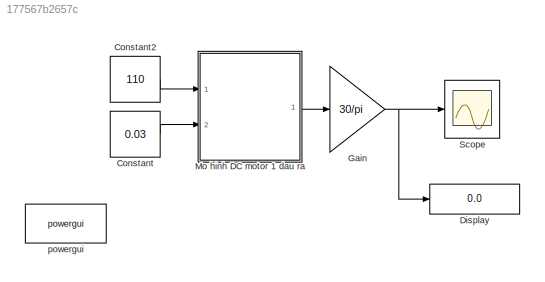
MODEL slx_177567b2657c
KIND model
CONFIG AbsTol = auto
CONFIG EnableMultiTasking = off
CONFIG FixedStep = auto
CONFIG MaxStep = auto
CONFIG MinStep = auto
CONFIG RelTol = 1e-3
CONFIG SampleTimeConstraint = Unconstrained
CONFIG Solver = VariableStepAuto
CONFIG SolverName = VariableStepAuto
CONFIG StartTime = 0.0
CONFIG StopTime = 0.1
BLOCK [Constant] Constant
  Value = 0.03
BLOCK [Constant] Constant2
  Value = 110
BLOCK [Display] Display
  Decimation = 1
  Ports = [1]
BLOCK [Gain] Gain
  Gain = 30/pi
  OutDataTypeStr = Inherit: Inherit via internal rule
  ParamDataTypeStr = Inherit: Inherit via internal rule
  SaturateOnIntegerOverflow = off
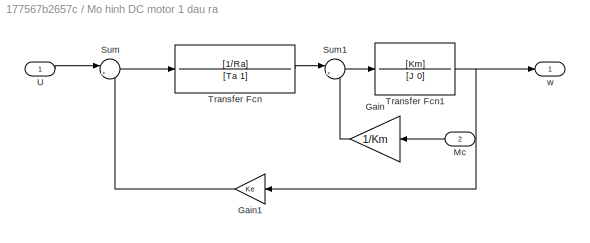
BLOCK [SubSystem] Mo hinh DC motor 1 dau ra 
  Ports = [2, 1]
  RequestExecContextInheritance = off
BLOCK [Gain] Mo hinh DC motor 1 dau ra /Gain
  Gain = 1/Km
  OutDataTypeStr = Inherit: Inherit via internal rule
  ParamDataTypeStr = Inherit: Inherit via internal rule
  SaturateOnIntegerOverflow = off
BLOCK [Gain] Mo hinh DC motor 1 dau ra /Gain1
  Gain = Ke
  OutDataTypeStr = Inherit: Inherit via internal rule
  ParamDataTypeStr = Inherit: Inherit via internal rule
  SaturateOnIntegerOverflow = off
BLOCK [Inport] Mo hinh DC motor 1 dau ra /Mc
  IconDisplay = Port number
  Port = 2
BLOCK [Sum] Mo hinh DC motor 1 dau ra /Sum
  IconShape = round
  InputSameDT = off
  Inputs = |+-
  OutDataTypeStr = Inherit: Inherit via internal rule
  Ports = [2, 1]
  SaturateOnIntegerOverflow = off
BLOCK [Sum] Mo hinh DC motor 1 dau ra /Sum1
  IconShape = round
  InputSameDT = off
  Inputs = |+-
  OutDataTypeStr = Inherit: Inherit via internal rule
  Ports = [2, 1]
  SaturateOnIntegerOverflow = off
BLOCK [TransferFcn] Mo hinh DC motor 1 dau ra /Transfer Fcn
  Denominator = [Ta 1]
  Numerator = [1/Ra]
BLOCK [TransferFcn] Mo hinh DC motor 1 dau ra /Transfer Fcn1
  Denominator = [J 0]
  Numerator = [Km]
BLOCK [Inport] Mo hinh DC motor 1 dau ra /U
  IconDisplay = Port number
BLOCK [Outport] Mo hinh DC motor 1 dau ra /w 
  IconDisplay = Port number
BLOCK [Scope] Scope
  Floating = off
  NumInputPorts = 1
  Ports = [1]
  ScopeSpecificationString = Simulink.scopes.TimeScopeBlockCfg('CurrentConfiguration', extmgr.ConfigurationSet(extmgr.Configuration('Core','General UI',true),extmgr.Configuration('Core','Source UI',true),extmgr.Configuration('Sources','WiredSimulink',true),extmgr.Configuration('Visuals','Time Domain',true,'SerializedDisplays',{struct('MinYLimReal','-1.01784','MaxYLimReal','7.20419','YLabelReal','','MinYLimMag','0.00000','MaxY...<+1378ch>
BLOCK [Reference] powergui  REF=powerlib/powergui
  Ports = []
  Priority = 1
  SourceBlock = powerlib/powergui
  SourceProductBaseCode = PS
  SourceProductName = Simscape Electrical
  SourceType = PSB option menu block
LINE Constant2:1 -> Mo hinh DC motor 1 dau ra :1
LINE Constant:1 -> Mo hinh DC motor 1 dau ra :2
NET Gain:1 -> Display:1, Scope:1
LINE Mo hinh DC motor 1 dau ra /Gain1:1 -> Mo hinh DC motor 1 dau ra /Sum:2
LINE Mo hinh DC motor 1 dau ra /Gain:1 -> Mo hinh DC motor 1 dau ra /Sum1:2
LINE Mo hinh DC motor 1 dau ra /Mc:1 -> Mo hinh DC motor 1 dau ra /Gain:1
LINE Mo hinh DC motor 1 dau ra /Sum1:1 -> Mo hinh DC motor 1 dau ra /Transfer Fcn1:1
LINE Mo hinh DC motor 1 dau ra /Sum:1 -> Mo hinh DC motor 1 dau ra /Transfer Fcn:1
NET Mo hinh DC motor 1 dau ra /Transfer Fcn1:1 -> Mo hinh DC motor 1 dau ra /Gain1:1, Mo hinh DC motor 1 dau ra /w :1
LINE Mo hinh DC motor 1 dau ra /Transfer Fcn:1 -> Mo hinh DC motor 1 dau ra /Sum1:1
LINE Mo hinh DC motor 1 dau ra /U:1 -> Mo hinh DC motor 1 dau ra /Sum:1
LINE Mo hinh DC motor 1 dau ra :1 -> Gain:1
note: NET lines group one-source signal fan-out (src -> all destinations, sorted); 1:1 wires keep LINE
